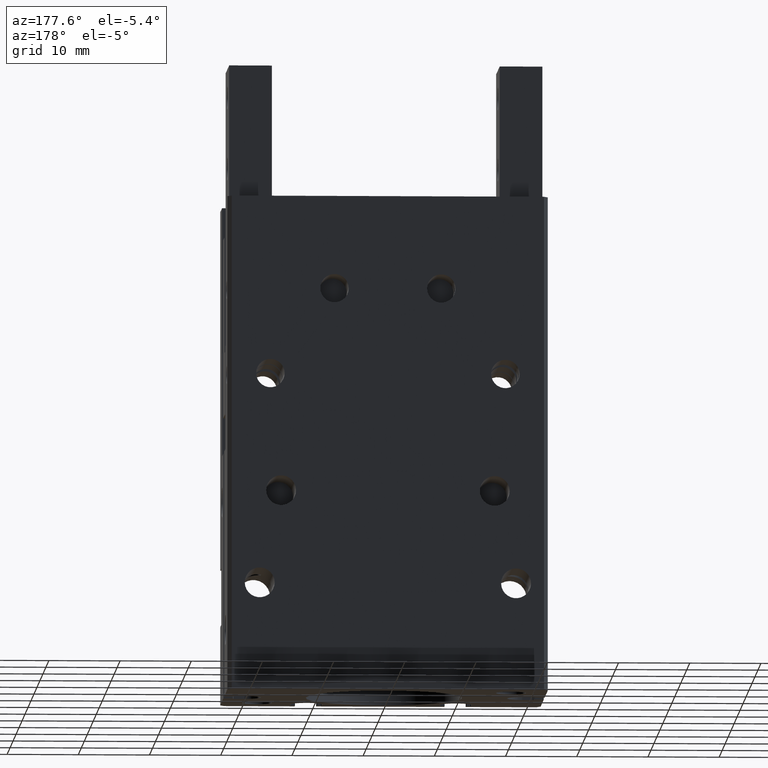
[diagram: clean part render]
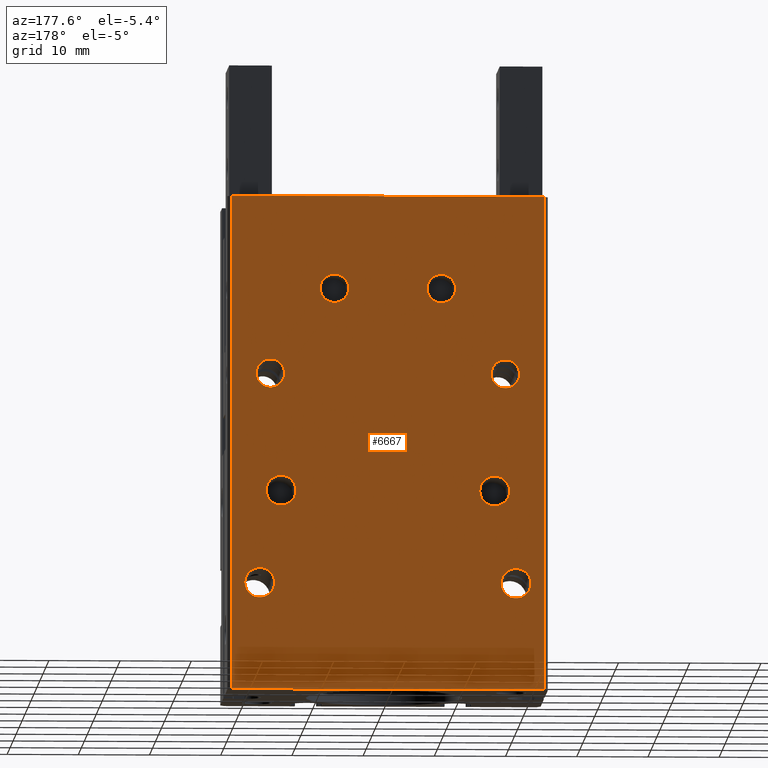
[diagram: same view with one face highlighted and labeled with its STEP entity id]
A machine part, auxiliary view. The second image highlights one B-rep face of the part: STEP entity #6667.
In plain terms, the highlighted planar face has unit normal (0, 1, 0).
Its self-contained STEP definition (entity closure, byte-faithful):
#4915=CARTESIAN_POINT('',(-21.9226367178946,13.0000130129158,
-1.650469706211E-014));
#4916=VERTEX_POINT('Vertex260',#4915);
#4923=CARTESIAN_POINT('',(21.9226627437261,13.0000130129157,
7.29035696264552E-015));
#4924=VERTEX_POINT('Vertex261',#4923);
#4925=CARTESIAN_POINT('',(1.30129157369652E-005,13.0000130129157,
-4.60717004973222E-015));
#4926=DIRECTION('',(-1.,3.32216366678765E-015,-5.42704789725158E-016));
#4927=VECTOR('',#4926,1.);
#4928=LINE('nurbsCrv358',#4925,#4927);
#4929=EDGE_CURVE('Edge358',#4924,#4916,#4928,.T.);
#5061=CARTESIAN_POINT('',(-21.9226367178947,13.0000130129158,69.5));
#5062=VERTEX_POINT('Vertex266',#5061);
#5063=CARTESIAN_POINT('',(-21.9226367178946,13.0000130129158,34.75));
#5064=DIRECTION('',(2.55590912143921E-016,2.55590912143921E-017,-1.));
#5065=VECTOR('',#5064,1.);
#5066=LINE('nurbsCrv367',#5063,#5065);
#5067=EDGE_CURVE('Edge367',#5062,#4916,#5066,.T.);
#5085=CARTESIAN_POINT('',(21.9226627437261,13.0000130129157,69.5));
#5086=VERTEX_POINT('Vertex267',#5085);
#5087=CARTESIAN_POINT('',(21.9226627437261,13.0000130129157,34.75));
#5088=DIRECTION('',(-2.55590912143921E-016,2.55590912143921E-017,1.));
#5089=VECTOR('',#5088,1.);
#5090=LINE('nurbsCrv369',#5087,#5089);
#5091=EDGE_CURVE('Edge369',#4924,#5086,#5090,.T.);
#6095=CARTESIAN_POINT('',(9.49999999999998,13.0000130129157,56.5));
#6096=VERTEX_POINT('Vertex294',#6095);
#6097=CARTESIAN_POINT('',(5.49999999999998,13.0000130129157,56.5));
#6098=VERTEX_POINT('Vertex358',#6097);
#6099=CARTESIAN_POINT('',(7.49999999999998,13.0000130129157,56.5));
#6100=DIRECTION('',(-8.88178419700129E-016,-1.,-8.88178419700128E-016));
#6101=DIRECTION('',(1.,-8.88178419700126E-016,0.));
#6102=AXIS2_PLACEMENT_3D('',#6099,#6100,#6101);
#6103=CIRCLE('nurbsCrv1558',#6102,2.);
#6104=EDGE_CURVE('Edge553',#6096,#6098,#6103,.T.);
#6106=CARTESIAN_POINT('',(7.49999999999998,13.0000130129157,56.5));
#6107=DIRECTION('',(8.88178419700125E-016,-1.,8.88178419700126E-016));
#6108=DIRECTION('',(-1.,-8.88178419700125E-016,0.));
#6109=AXIS2_PLACEMENT_3D('',#6106,#6107,#6108);
#6110=CIRCLE('nurbsCrv1559',#6109,2.);
#6111=EDGE_CURVE('Edge554',#6098,#6096,#6110,.T.);
#6129=CARTESIAN_POINT('',(-5.50000000000002,13.0000130129157,56.5));
#6130=VERTEX_POINT('Vertex295',#6129);
#6131=CARTESIAN_POINT('',(-9.50000000000002,13.0000130129157,56.5));
#6132=VERTEX_POINT('Vertex361',#6131);
#6133=CARTESIAN_POINT('',(-7.50000000000002,13.0000130129157,56.5));
#6134=DIRECTION('',(-3.15544362088406E-030,-1.,-8.88178419700128E-016));
#6135=DIRECTION('',(1.,2.66453525910037E-015,0.));
#6136=AXIS2_PLACEMENT_3D('',#6133,#6134,#6135);
#6137=CIRCLE('nurbsCrv1579',#6136,2.);
#6138=EDGE_CURVE('Edge560',#6130,#6132,#6137,.T.);
#6140=CARTESIAN_POINT('',(-7.50000000000002,13.0000130129157,56.5));
#6141=DIRECTION('',(0.,-1.,0.));
#6142=DIRECTION('',(-1.,1.77635683940025E-015,0.));
#6143=AXIS2_PLACEMENT_3D('',#6140,#6141,#6142);
#6144=CIRCLE('nurbsCrv1580',#6143,2.);
#6145=EDGE_CURVE('Edge561',#6132,#6130,#6144,.T.);
#6164=CARTESIAN_POINT('',(-14.5,13.0000130129157,44.5000000000001));
#6165=VERTEX_POINT('Vertex296',#6164);
#6166=CARTESIAN_POINT('',(-18.5,13.0000130129157,44.5000000000001));
#6167=VERTEX_POINT('Vertex364',#6166);
#6168=CARTESIAN_POINT('',(-16.5,13.0000130129157,44.5000000000001));
#6169=DIRECTION('',(0.,-1.,-8.88178419700125E-016));
#6170=DIRECTION('',(1.,2.66453525910038E-015,0.));
#6171=AXIS2_PLACEMENT_3D('',#6168,#6169,#6170);
#6172=CIRCLE('nurbsCrv1606',#6171,2.);
#6173=EDGE_CURVE('Edge568',#6165,#6167,#6172,.T.);
#6175=CARTESIAN_POINT('',(-16.5,13.0000130129157,44.5000000000001));
#6176=DIRECTION('',(0.,-1.,0.));
#6177=DIRECTION('',(-1.,8.88178419700125E-016,0.));
#6178=AXIS2_PLACEMENT_3D('',#6175,#6176,#6177);
#6179=CIRCLE('nurbsCrv1607',#6178,2.);
#6180=EDGE_CURVE('Edge569',#6167,#6165,#6179,.T.);
#6199=CARTESIAN_POINT('',(18.5,13.0000130129157,44.5));
#6200=VERTEX_POINT('Vertex297',#6199);
#6201=CARTESIAN_POINT('',(14.5,13.0000130129157,44.5));
#6202=VERTEX_POINT('Vertex366',#6201);
#6203=CARTESIAN_POINT('',(16.5,13.0000130129157,44.5));
#6204=DIRECTION('',(0.,-1.,0.));
#6205=DIRECTION('',(1.,-8.88178419700124E-016,7.10542735760099E-015));
#6206=AXIS2_PLACEMENT_3D('',#6203,#6204,#6205);
#6207=CIRCLE('nurbsCrv1629',#6206,2.);
#6208=EDGE_CURVE('Edge574',#6200,#6202,#6207,.T.);
#6210=CARTESIAN_POINT('',(16.5,13.0000130129157,44.5));
#6211=DIRECTION('',(0.,-1.,0.));
#6212=DIRECTION('',(-1.,-8.88178419700128E-016,3.55271367880051E-015));
#6213=AXIS2_PLACEMENT_3D('',#6210,#6211,#6212);
#6214=CIRCLE('nurbsCrv1630',#6213,2.);
#6215=EDGE_CURVE('Edge575',#6202,#6200,#6214,.T.);
#6477=CARTESIAN_POINT('',(17.1000130129157,13.0000130129157,28.));
#6478=VERTEX_POINT('Vertex372',#6477);
#6479=CARTESIAN_POINT('',(12.9000130129157,13.0000130129157,28.));
#6480=VERTEX_POINT('Vertex305',#6479);
#6481=CARTESIAN_POINT('',(15.0000130129157,13.0000130129157,28.));
#6482=DIRECTION('',(4.22942104619108E-015,1.,-8.45884209238208E-016));
#6483=DIRECTION('',(1.,-3.38353683695286E-015,3.38353683695286E-015));
#6484=AXIS2_PLACEMENT_3D('',#6481,#6482,#6483);
#6485=CIRCLE('nurbsCrv1710',#6484,2.1);
#6486=EDGE_CURVE('Edge589',#6478,#6480,#6485,.T.);
#6488=CARTESIAN_POINT('',(15.0000130129157,13.0000130129157,28.));
#6489=DIRECTION('',(3.38353683695286E-015,1.,-8.45884209238203E-016));
#6490=DIRECTION('',(-1.,2.53765262771465E-015,-1.69176841847643E-015));
#6491=AXIS2_PLACEMENT_3D('',#6488,#6489,#6490);
#6492=CIRCLE('nurbsCrv1709',#6491,2.1);
#6493=EDGE_CURVE('Edge588',#6480,#6478,#6492,.T.);
#6508=CARTESIAN_POINT('',(1.30129157192016E-005,13.0000130129157,69.5));
#6509=DIRECTION('',(1.,-3.24113528467088E-015,0.));
#6510=VECTOR('',#6509,1.);
#6511=LINE('nurbsCrv431',#6508,#6510);
#6512=EDGE_CURVE('Edge431',#5062,#5086,#6511,.T.);
#6552=CARTESIAN_POINT('',(-12.8999869870843,13.0000130129158,28.));
#6553=VERTEX_POINT('Vertex374',#6552);
#6554=CARTESIAN_POINT('',(-17.0999869870843,13.0000130129158,28.));
#6555=VERTEX_POINT('Vertex307',#6554);
#6556=CARTESIAN_POINT('',(-14.9999869870843,13.0000130129158,28.));
#6557=DIRECTION('',(3.38353683695286E-015,1.,2.86208038175425E-030));
#6558=DIRECTION('',(1.,-3.38353683695287E-015,3.38353683695287E-015));
#6559=AXIS2_PLACEMENT_3D('',#6556,#6557,#6558);
#6560=CIRCLE('nurbsCrv1732',#6559,2.09999999999999);
#6561=EDGE_CURVE('Edge594',#6553,#6555,#6560,.T.);
#6563=CARTESIAN_POINT('',(-14.9999869870843,13.0000130129158,28.));
#6564=DIRECTION('',(4.22942104619109E-015,1.,-8.45884209238218E-016));
#6565=DIRECTION('',(-1.,3.38353683695286E-015,0.));
#6566=AXIS2_PLACEMENT_3D('',#6563,#6564,#6565);
#6567=CIRCLE('nurbsCrv1731',#6566,2.09999999999999);
#6568=EDGE_CURVE('Edge593',#6555,#6553,#6567,.T.);
#6578=CARTESIAN_POINT('',(-15.8999869870843,13.0000130129158,15.));
#6579=VERTEX_POINT('Vertex308',#6578);
#6580=CARTESIAN_POINT('',(-20.0999869870843,13.0000130129158,15.));
#6581=VERTEX_POINT('Vertex376',#6580);
#6582=CARTESIAN_POINT('',(-17.9999869870843,13.0000130129158,15.));
#6583=DIRECTION('',(-3.38353683695286E-015,-1.,8.58624114526274E-030));
#6584=DIRECTION('',(1.,-2.53765262771465E-015,8.45884209238215E-016));
#6585=AXIS2_PLACEMENT_3D('',#6582,#6583,#6584);
#6586=CIRCLE('nurbsCrv1746',#6585,2.1);
#6587=EDGE_CURVE('Edge598',#6579,#6581,#6586,.T.);
#6589=CARTESIAN_POINT('',(-17.9999869870843,13.0000130129158,15.));
#6590=DIRECTION('',(-3.38353683695287E-015,-1.,5.7241607635085E-030));
#6591=DIRECTION('',(-1.,3.38353683695286E-015,3.38353683695286E-015));
#6592=AXIS2_PLACEMENT_3D('',#6589,#6590,#6591);
#6593=CIRCLE('nurbsCrv1747',#6592,2.1);
#6594=EDGE_CURVE('Edge599',#6581,#6579,#6593,.T.);
#6608=ORIENTED_EDGE('Edgeuse858',*,*,#5067,.F.);
#6609=ORIENTED_EDGE('Edgeuse859',*,*,#6512,.T.);
#6610=ORIENTED_EDGE('Edgeuse860',*,*,#5091,.F.);
#6611=ORIENTED_EDGE('Edgeuse861',*,*,#4929,.T.);
#6612=EDGE_LOOP('',(#6608,#6609,#6610,#6611));
#6613=FACE_OUTER_BOUND('',#6612,.T.);
#6614=ORIENTED_EDGE('Edgeuse1148',*,*,#6208,.T.);
#6615=ORIENTED_EDGE('Edgeuse1150',*,*,#6215,.T.);
#6616=EDGE_LOOP('',(#6614,#6615));
#6617=FACE_BOUND('',#6616,.T.);
#6618=ORIENTED_EDGE('Edgeuse1136',*,*,#6173,.T.);
#6619=ORIENTED_EDGE('Edgeuse1138',*,*,#6180,.T.);
#6620=EDGE_LOOP('',(#6618,#6619));
#6621=FACE_BOUND('',#6620,.T.);
#6622=ORIENTED_EDGE('Edgeuse1120',*,*,#6138,.T.);
#6623=ORIENTED_EDGE('Edgeuse1122',*,*,#6145,.T.);
#6624=EDGE_LOOP('',(#6622,#6623));
#6625=FACE_BOUND('',#6624,.T.);
#6626=ORIENTED_EDGE('Edgeuse1106',*,*,#6104,.T.);
#6627=ORIENTED_EDGE('Edgeuse1108',*,*,#6111,.T.);
#6628=EDGE_LOOP('',(#6626,#6627));
#6629=FACE_BOUND('',#6628,.T.);
#6630=ORIENTED_EDGE('Edgeuse1196',*,*,#6587,.T.);
#6631=ORIENTED_EDGE('Edgeuse1198',*,*,#6594,.T.);
#6632=EDGE_LOOP('',(#6630,#6631));
#6633=FACE_BOUND('',#6632,.T.);
#6634=CARTESIAN_POINT('',(20.1000130129157,13.0000130129157,15.));
#6635=VERTEX_POINT('Vertex309',#6634);
#6636=CARTESIAN_POINT('',(15.9000130129157,13.0000130129157,15.));
#6637=VERTEX_POINT('Vertex380',#6636);
#6638=CARTESIAN_POINT('',(18.0000130129157,13.0000130129157,15.));
#6639=DIRECTION('',(-3.38353683695286E-015,-1.,8.45884209238227E-016));
#6640=DIRECTION('',(1.,-4.22942104619107E-015,-2.53765262771464E-015));
#6641=AXIS2_PLACEMENT_3D('',#6638,#6639,#6640);
#6642=CIRCLE('nurbsCrv1802',#6641,2.1);
#6643=EDGE_CURVE('Edge608',#6635,#6637,#6642,.T.);
#6644=ORIENTED_EDGE('Edgeuse1217',*,*,#6643,.T.);
#6645=CARTESIAN_POINT('',(18.0000130129157,13.0000130129157,15.));
#6646=DIRECTION('',(-3.38353683695287E-015,-1.,8.45884209238225E-016));
#6647=DIRECTION('',(-1.,5.07530525542931E-015,2.53765262771465E-015));
#6648=AXIS2_PLACEMENT_3D('',#6645,#6646,#6647);
#6649=CIRCLE('nurbsCrv1803',#6648,2.1);
#6650=EDGE_CURVE('Edge609',#6637,#6635,#6649,.T.);
#6651=ORIENTED_EDGE('Edgeuse1219',*,*,#6650,.T.);
#6652=EDGE_LOOP('',(#6644,#6651));
#6653=FACE_BOUND('',#6652,.T.);
#6654=ORIENTED_EDGE('Edgeuse1188',*,*,#6561,.F.);
#6655=ORIENTED_EDGE('Edgeuse1186',*,*,#6568,.F.);
#6656=EDGE_LOOP('',(#6654,#6655));
#6657=FACE_BOUND('',#6656,.T.);
#6658=ORIENTED_EDGE('Edgeuse1178',*,*,#6486,.F.);
#6659=ORIENTED_EDGE('Edgeuse1176',*,*,#6493,.F.);
#6660=EDGE_LOOP('',(#6658,#6659));
#6661=FACE_BOUND('',#6660,.T.);
#6662=CARTESIAN_POINT('',(1.30129157280834E-005,13.0000130129157,34.75));
#6663=DIRECTION('',(3.20430420189051E-015,1.,1.02746147870178E-029));
#6664=DIRECTION('',(1.,-3.20430420189051E-015,3.24113528467086E-015));
#6665=AXIS2_PLACEMENT_3D('',#6662,#6663,#6664);
#6666=PLANE('nurbsSrf168',#6665);
#6667=ADVANCED_FACE('Face168',(#6613,#6617,#6621,#6625,#6629,#6633,#6653,#6657,
#6661),#6666,.T.);